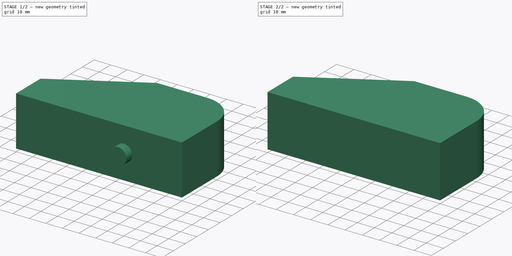
[diagram: build sequence overview — one tinted view per stage of 2, left to right]
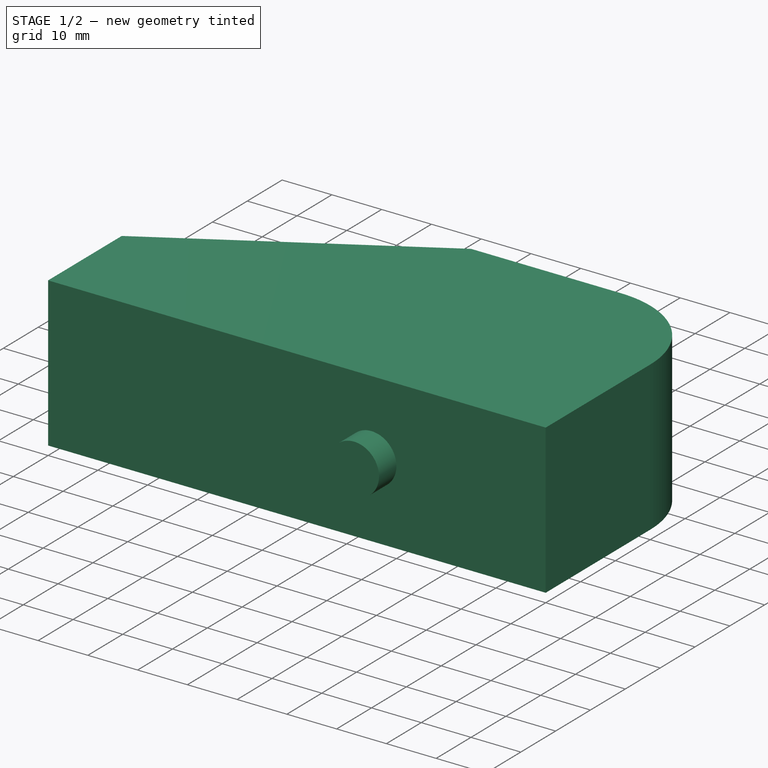
[diagram: stage 1 of 2 — iso view after this stage's code; geometry added in this stage tinted green]
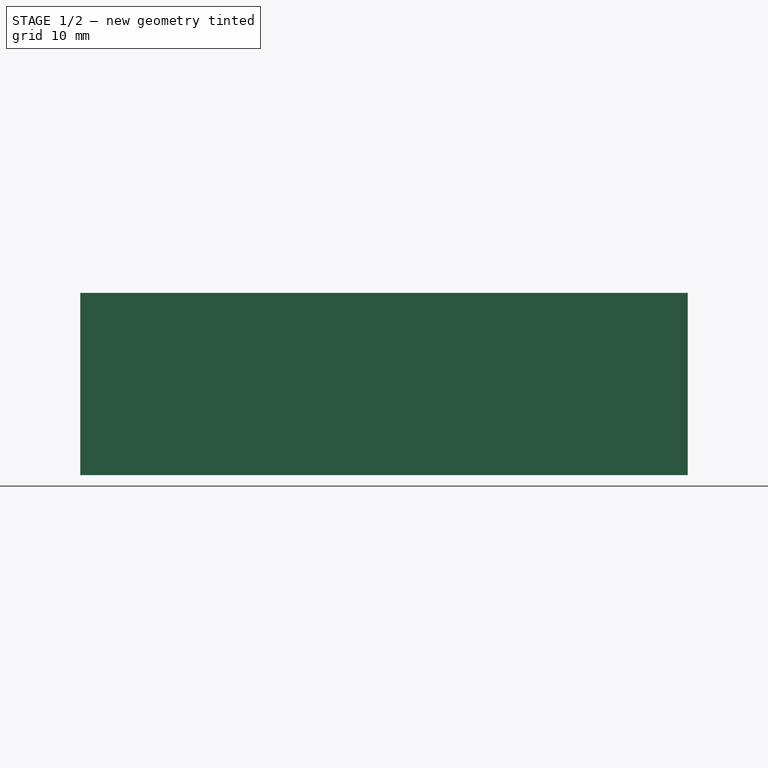
[diagram: stage 1 of 2 — front view after this stage's code; geometry added in this stage tinted green]
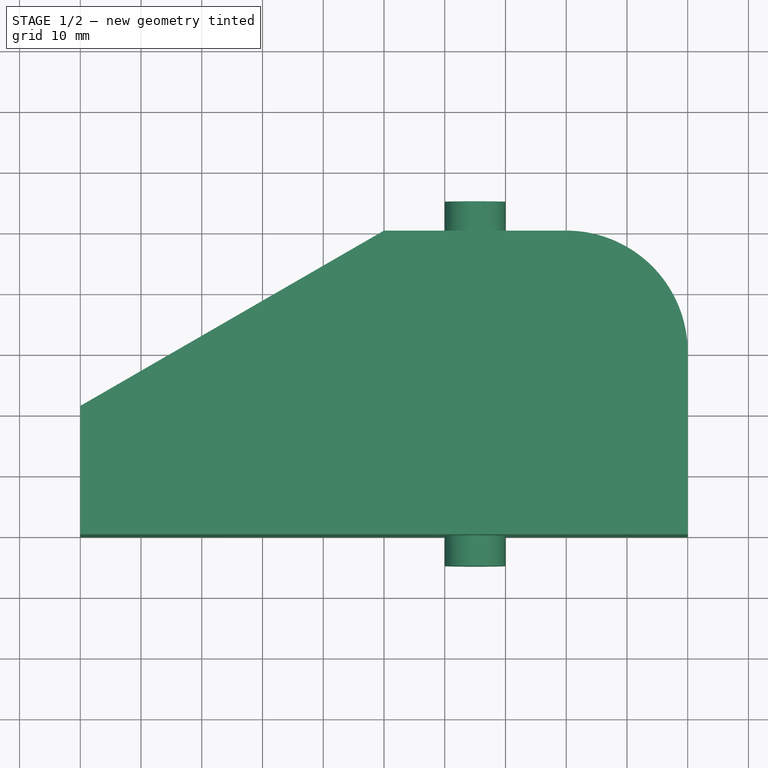
[diagram: stage 1 of 2 — top view after this stage's code; geometry added in this stage tinted green]
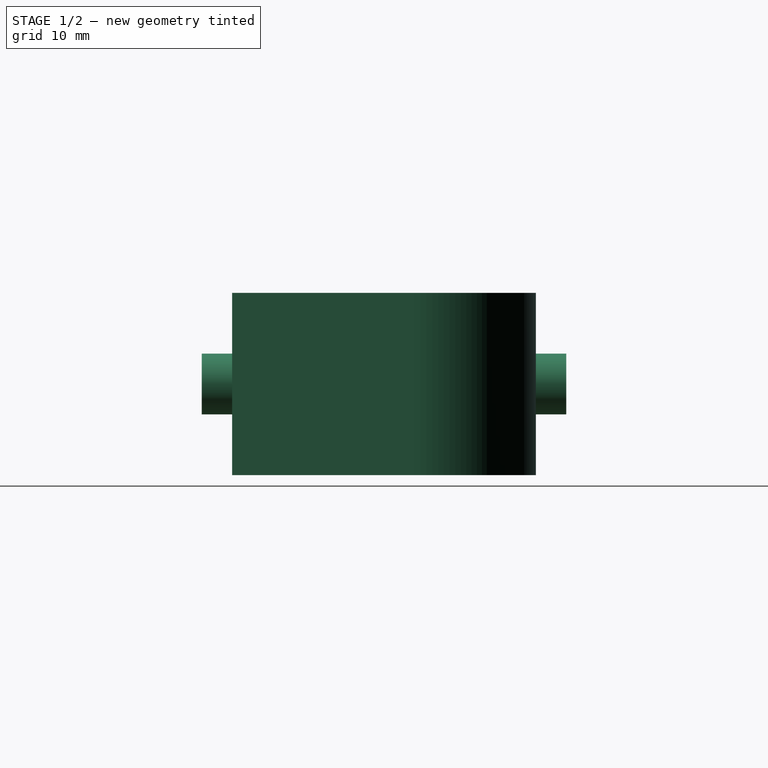
[diagram: stage 1 of 2 — right view after this stage's code; geometry added in this stage tinted green]
FCSTD DOCUMENT  (FreeCAD 0.20R29410 (Git))
Label: Creating a simple part with Draft and Part WB
License: All rights reserved
LicenseURL: http://en.wikipedia.org/wiki/All_rights_reserved
objects: Part::Feature×7, Part::Extrusion×2, App::DocumentObjectGroup×1, Part::Cylinder×1, Part::Cut×1, Sketcher::SketchObject×1
note: 12 computed .brp shape members not serialized (recipe doc carries the construction recipe); baked Part::Feature solids carry a one-line shape summary decoded from their .brp

FEATURE [Part::Cylinder] Cylinder
  Angle = 360
  AttacherType = Attacher::AttachEngine3D
  FirstAngle = 0
  Height = 60
  Placement = pos=(65,-5,15) rot=(-1,0,0;1.5708rad)
  Radius = 5
  SecondAngle = 0
FEATURE [Sketcher::SketchObject] Sketch
  FullyConstrained = true
  sketch-geometry (7):
    g0: LineSegment StartX=0 StartY=0 StartZ=0 EndX=100 EndY=0 EndZ=0
    g1: LineSegment StartX=0 StartY=21.1325 StartZ=0 EndX=0 EndY=0 EndZ=0
    g2: LineSegment StartX=0 StartY=21.1325 StartZ=0 EndX=50 EndY=50 EndZ=0
    g3: LineSegment StartX=100 StartY=0 StartZ=0 EndX=100 EndY=30 EndZ=0
    g4: ArcOfCircle CenterX=80 CenterY=30 CenterZ=0 NormalX=0 NormalY=0 NormalZ=1 AngleXU=-2e-16 Radius=20 StartAngle=1e-16 EndAngle=1.5708
    g5: LineSegment StartX=50 StartY=50 StartZ=0 EndX=80 EndY=50 EndZ=0
    g6: GeomPoint X=50 Y=0 Z=0
  constraints (18):
    c: Vertical(g1)
    c: Horizontal(g5)
    c: Coincident(g0,g1)
    c: Coincident(g1,g2)
    c: Coincident(g2,g5)
    c: Coincident(g0,g3)
    c: DistanceY(g0,g4) = 50
    c: DistanceX(g0,g0) = 100
    c: Angle(g1,g2) = 2.0944
    c: Radius(g4) = 20
    c: PointOnObject(g0,g-2)
    c: PointOnObject(g0,g-1)
    c: Horizontal(g0)
    c: Vertical(g3)
    c: Tangent(g3,g4) = -1.5708
    c: Tangent(g4,g5) = 1.5708
    c: Symmetric(g0,g0,g6)
    c: Vertical(g2,g6)
FEATURE [Part::Extrusion] Extrude001  label="DraftToSketch"
  Base = -> Sketch
  Dir = (0,0,1)
  DirMode = 0
  FaceMakerClass = Part::FaceMakerBullseye
  LengthFwd = 30
  LengthRev = 0
  Solid = true
  Symmetric = false
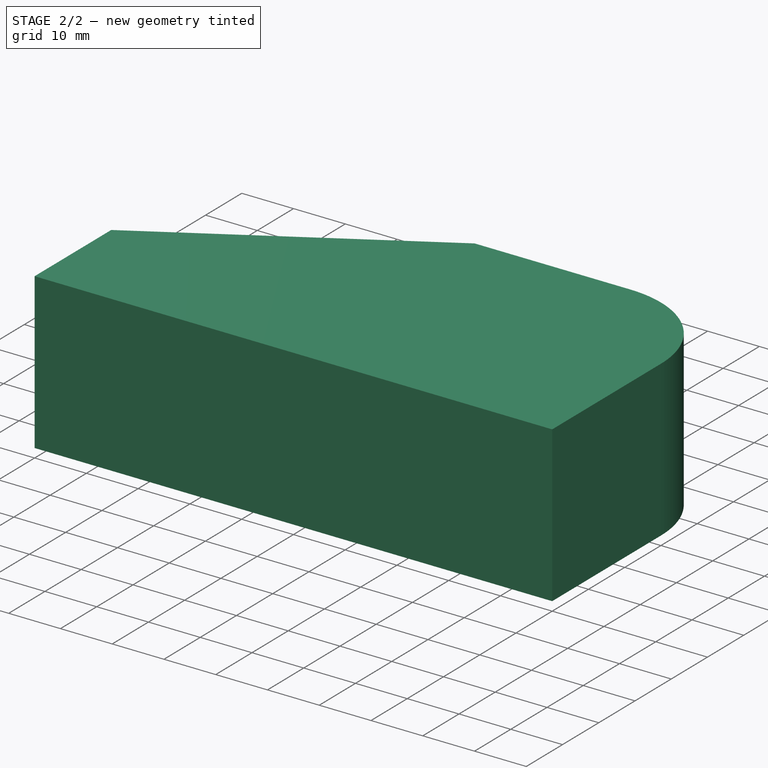
[diagram: stage 2 of 2 — iso view after this stage's code; geometry added in this stage tinted green]
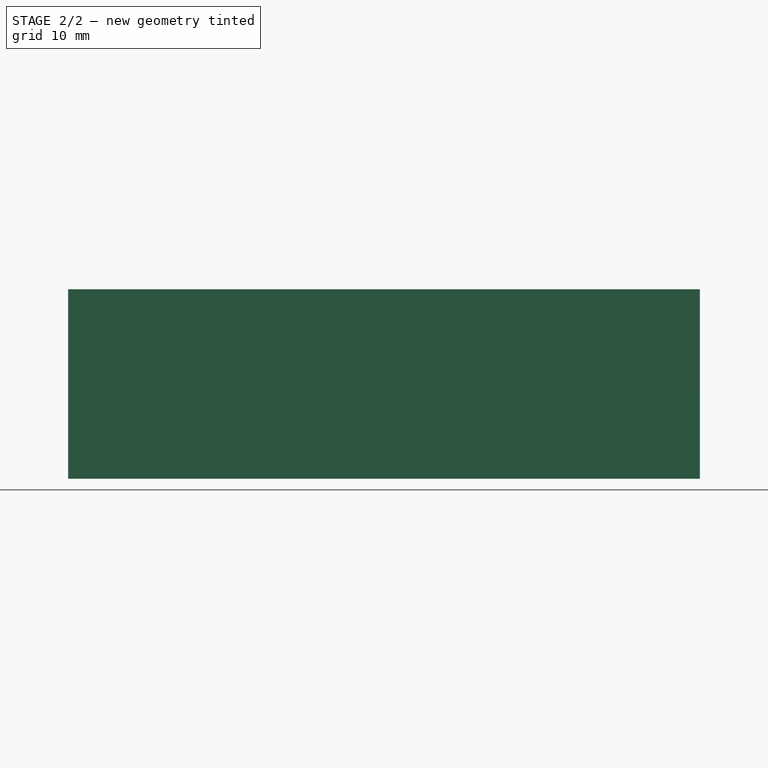
[diagram: stage 2 of 2 — front view after this stage's code; geometry added in this stage tinted green]
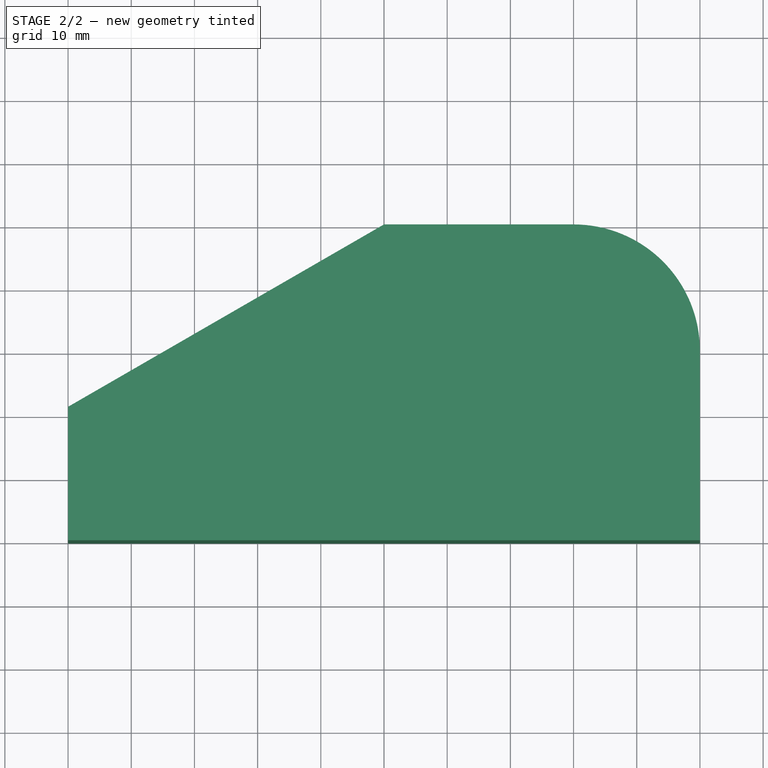
[diagram: stage 2 of 2 — top view after this stage's code; geometry added in this stage tinted green]
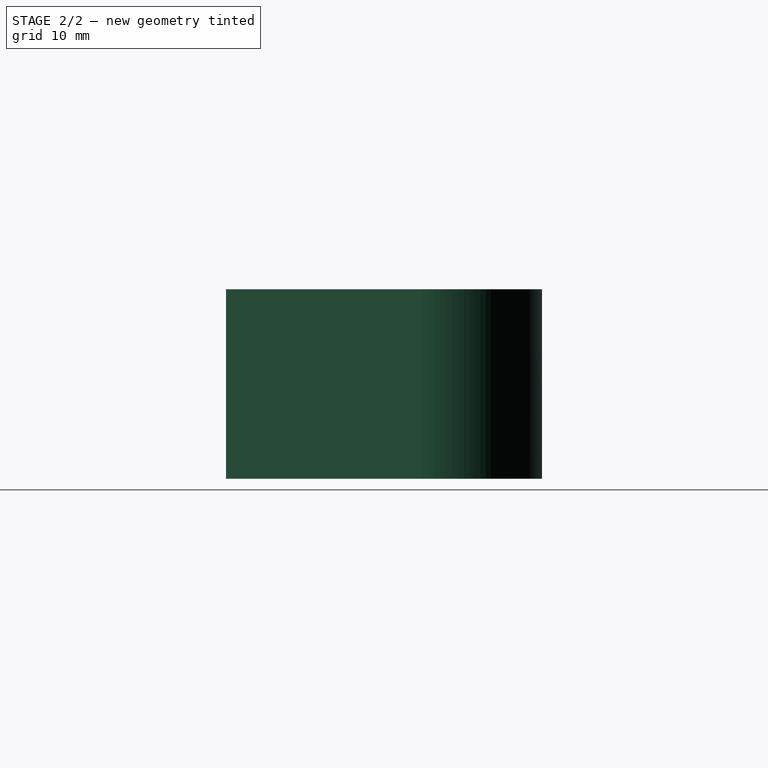
[diagram: stage 2 of 2 — right view after this stage's code; geometry added in this stage tinted green]
FEATURE [Part::Feature] Edge  label="Bottom"
  shape: bbox 100 x 2e-07 x 2e-07 mm, 0 faces, 0 solids (baked)
FEATURE [Part::Feature] Edge003  label="Left"
  shape: bbox 2e-07 x 21.13 x 2e-07 mm, 0 faces, 0 solids (baked)
FEATURE [Part::Feature] Edge005  label="Chamfer"
  shape: bbox 50 x 28.87 x 2e-07 mm, 0 faces, 0 solids (baked)
FEATURE [Part::Feature] Edge006  label="Right"
  shape: bbox 2e-07 x 30 x 2e-07 mm, 0 faces, 0 solids (baked)
FEATURE [Part::Feature] Edge007  label="Fillet"
  shape: bbox 20 x 20 x 2e-07 mm, 0 faces, 0 solids (baked)
FEATURE [Part::Feature] Edge008  label="Top"
  shape: bbox 30 x 2e-07 x 2e-07 mm, 0 faces, 0 solids (baked)
FEATURE [App::DocumentObjectGroup] Group  label="Profile"
  Group = -> [Edge,Edge003,Edge005,Edge006,Edge007,Edge008]
FEATURE [Part::Feature] Face
  shape: bbox 100 x 50 x 2e-07 mm, 1 faces, 0 solids (baked)
FEATURE [Part::Extrusion] Extrude
  Base = -> Face
  Dir = (0,0,1)
  DirMode = 0
  FaceMakerClass = Part::FaceMakerBullseye
  LengthFwd = 30
  LengthRev = 0
  Solid = false
  Symmetric = false
FEATURE [Part::Cut] Cut  label="DraftWB"
  Base = -> Extrude
  Tool = -> Cylinder
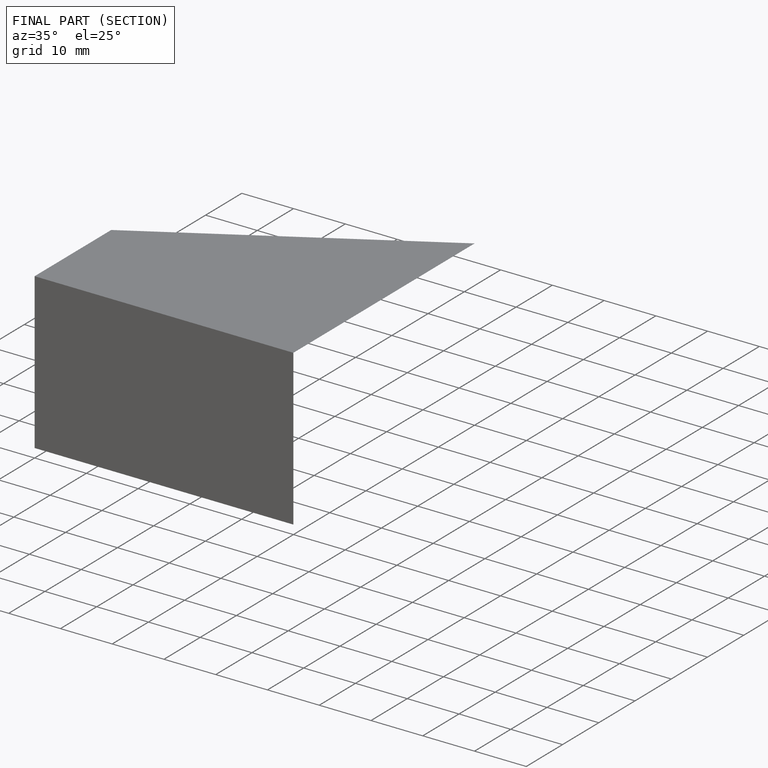
[diagram: finished part — half-section view (interior)]
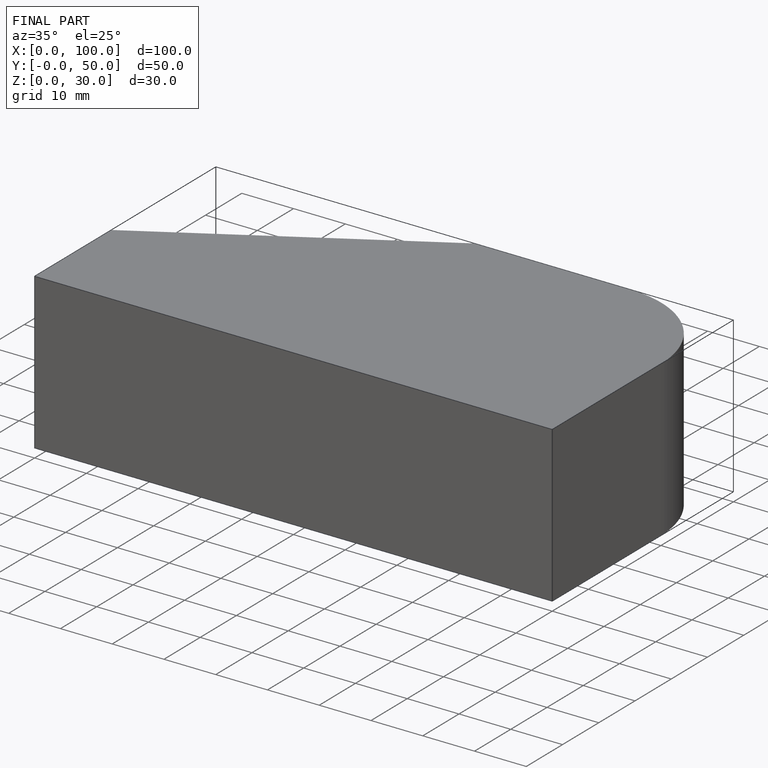
[diagram: finished part — iso view with bounding-box wireframe]
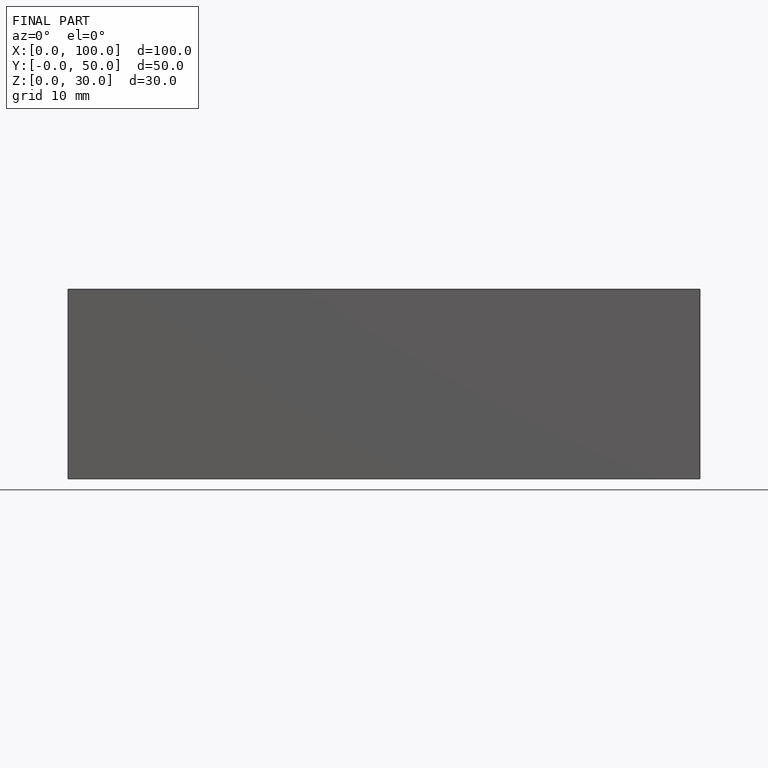
[diagram: finished part — front view with bounding-box wireframe]
